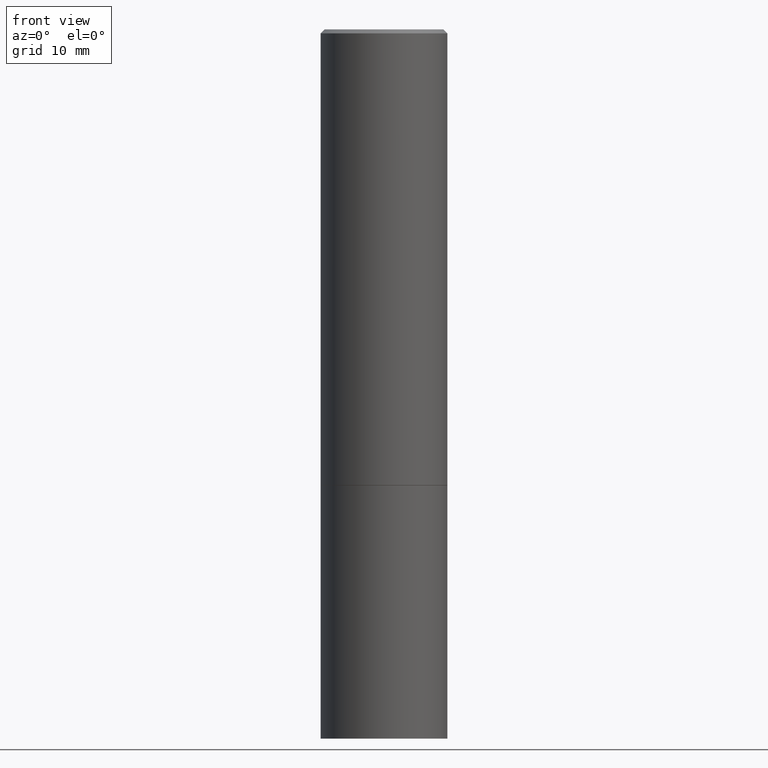
[diagram: clean part render]
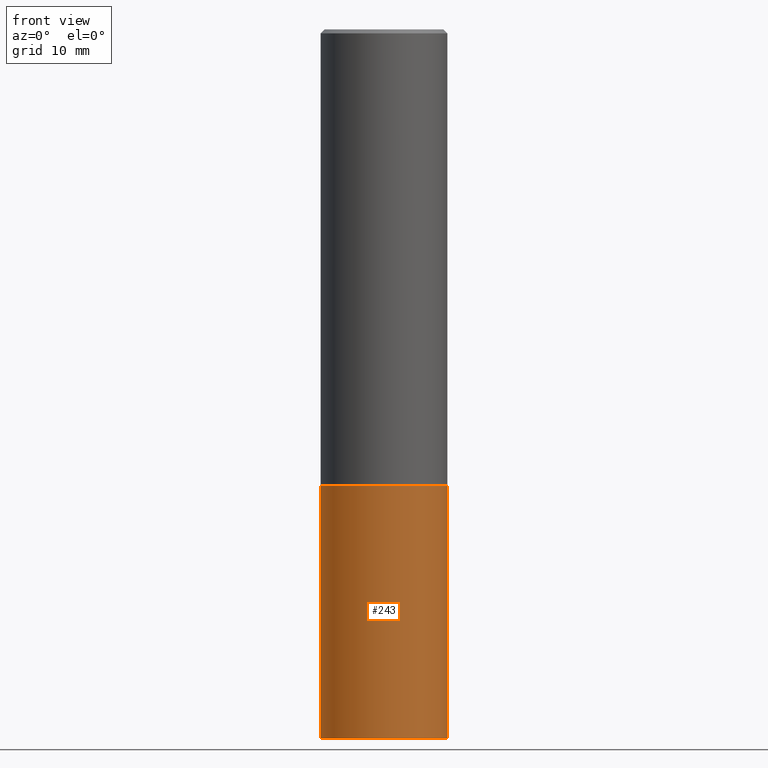
[diagram: same view with one face highlighted and labeled with its STEP entity id]
A machine part, front view. The second image highlights one B-rep face of the part: STEP entity #243.
In plain terms, the highlighted cylindrical surface (partial cylindrical patch) has radius 7.9375 mm, axis along (-0, 0, 1).
Its self-contained STEP definition (entity closure, byte-faithful):
#5 = DIRECTION ( 'NONE',  ( -2.445468806185136597E-29, 3.491481338843145583E-15, 1.000000000000000000 ) ) ;
#6 = CARTESIAN_POINT ( 'NONE',  ( 0.3124999999999997224, -1.436409031025461138E-14, -3.500000000000000000 ) ) ;
#11 = DIRECTION ( 'NONE',  ( -2.445468806185136597E-29, 3.491481338843145583E-15, 1.000000000000000000 ) ) ;
#13 = AXIS2_PLACEMENT_3D ( 'NONE', #146, #5, #374 ) ;
#24 = ORIENTED_EDGE ( 'NONE', *, *, #74, .T. ) ;
#37 = FACE_OUTER_BOUND ( 'NONE', #331, .T. ) ;
#45 = DIRECTION ( 'NONE',  ( 1.000000000000000000, -6.982962677686269077E-15, 0.000000000000000000 ) ) ;
#48 = CARTESIAN_POINT ( 'NONE',  ( 0.3125000000000000000, -2.182175836776958347E-15, 1.523805242436230075E-29 ) ) ;
#51 = VECTOR ( 'NONE', #371, 39.37007874015748143 ) ;
#60 = LINE ( 'NONE', #367, #51 ) ;
#74 = EDGE_CURVE ( 'NONE', #297, #82, #155, .T. ) ;
#82 = VERTEX_POINT ( 'NONE', #6 ) ;
#89 = CARTESIAN_POINT ( 'NONE',  ( -0.3125000000000000000, -7.817562799923730025E-15, -2.249999999999999556 ) ) ;
#96 = ORIENTED_EDGE ( 'NONE', *, *, #215, .F. ) ;
#97 = AXIS2_PLACEMENT_3D ( 'NONE', #188, #313, #45 ) ;
#110 = VERTEX_POINT ( 'NONE', #89 ) ;
#124 = AXIS2_PLACEMENT_3D ( 'NONE', #279, #11, #342 ) ;
#133 = ORIENTED_EDGE ( 'NONE', *, *, #315, .F. ) ;
#146 = CARTESIAN_POINT ( 'NONE',  ( 8.559140821647976968E-29, -1.222018468595100934E-14, -3.500000000000000000 ) ) ;
#150 = CYLINDRICAL_SURFACE ( 'NONE', #124, 0.3125000000000000000 ) ;
#155 = CIRCLE ( 'NONE', #13, 0.3125000000000000000 ) ;
#188 = CARTESIAN_POINT ( 'NONE',  ( 5.502304813916556222E-29, -7.855833012397076871E-15, -2.249999999999999556 ) ) ;
#204 = VERTEX_POINT ( 'NONE', #280 ) ;
#214 = ORIENTED_EDGE ( 'NONE', *, *, #299, .T. ) ;
#215 = EDGE_CURVE ( 'NONE', #297, #110, #60, .T. ) ;
#217 = VECTOR ( 'NONE', #378, 39.37007874015748143 ) ;
#243 = ADVANCED_FACE ( 'NONE', ( #37 ), #150, .T. ) ;
#246 = CARTESIAN_POINT ( 'NONE',  ( -0.3124999999999997224, -1.003800884917405415E-14, -3.500000000000000000 ) ) ;
#278 = CIRCLE ( 'NONE', #97, 0.3125000000000000000 ) ;
#279 = CARTESIAN_POINT ( 'NONE',  ( 0.000000000000000000, 0.000000000000000000, 0.000000000000000000 ) ) ;
#280 = CARTESIAN_POINT ( 'NONE',  ( 0.3125000000000000000, -1.003800884917403522E-14, -2.249999999999999556 ) ) ;
#297 = VERTEX_POINT ( 'NONE', #246 ) ;
#299 = EDGE_CURVE ( 'NONE', #82, #204, #354, .T. ) ;
#313 = DIRECTION ( 'NONE',  ( -2.445468806185136597E-29, 3.491481338843145583E-15, 1.000000000000000000 ) ) ;
#315 = EDGE_CURVE ( 'NONE', #110, #204, #278, .T. ) ;
#331 = EDGE_LOOP ( 'NONE', ( #96, #24, #214, #133 ) ) ;
#342 = DIRECTION ( 'NONE',  ( 1.000000000000000000, -6.982962677686266711E-15, 4.876176775795936353E-29 ) ) ;
#354 = LINE ( 'NONE', #48, #217 ) ;
#367 = CARTESIAN_POINT ( 'NONE',  ( -0.3125000000000000000, 2.220446049250313081E-15, -1.537167215704658232E-29 ) ) ;
#371 = DIRECTION ( 'NONE',  ( -2.445468806185136877E-29, 3.491481338843145188E-15, 1.000000000000000000 ) ) ;
#374 = DIRECTION ( 'NONE',  ( 1.000000000000000000, -6.982962677686269077E-15, 0.000000000000000000 ) ) ;
#378 = DIRECTION ( 'NONE',  ( -2.445468806185136877E-29, 3.491481338843145188E-15, 1.000000000000000000 ) ) ;